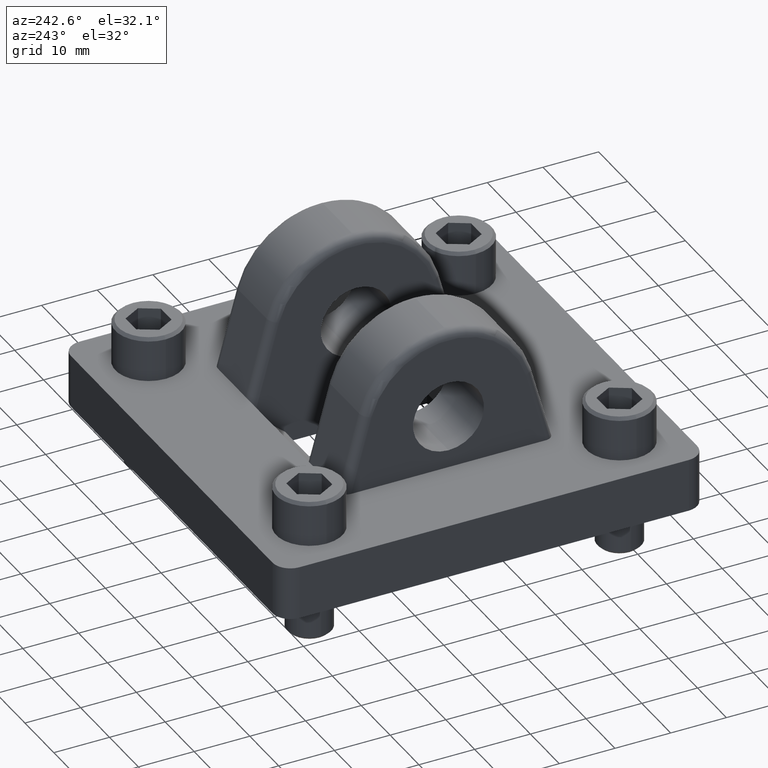
[diagram: clean part render]
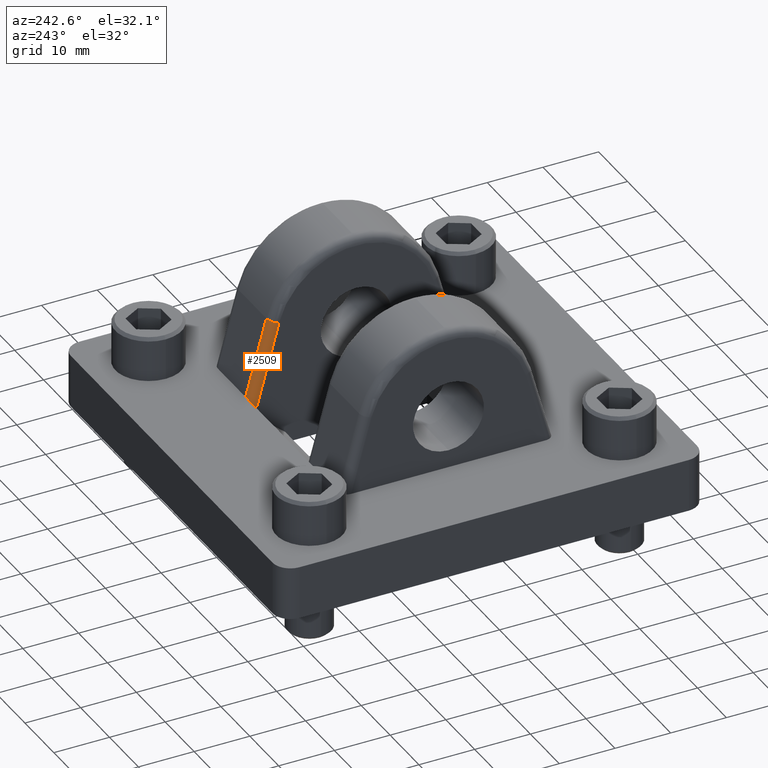
[diagram: same view with one face highlighted and labeled with its STEP entity id]
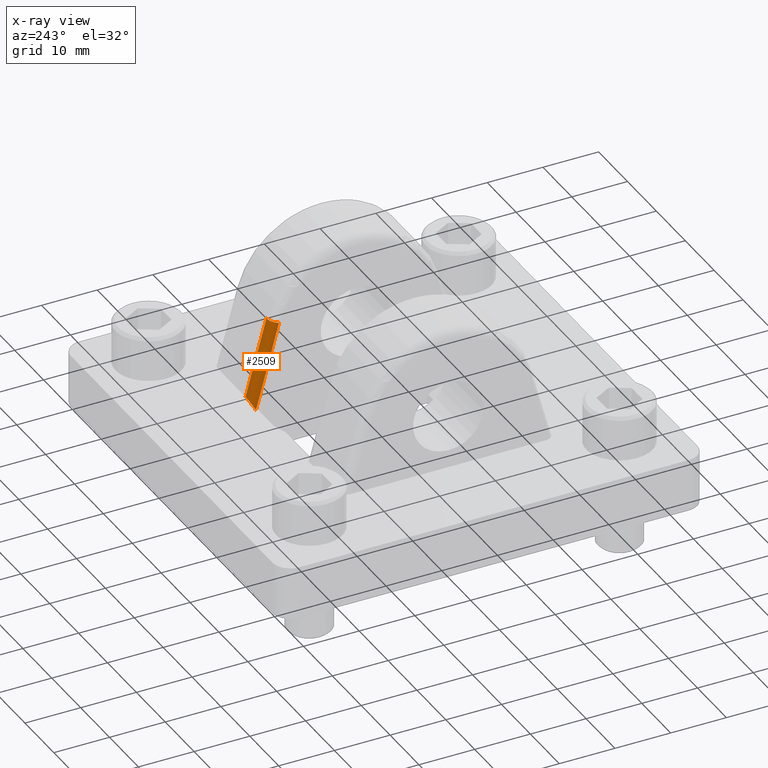
[diagram: x-ray of the same camera — body ghosted, the highlighted face saturated]
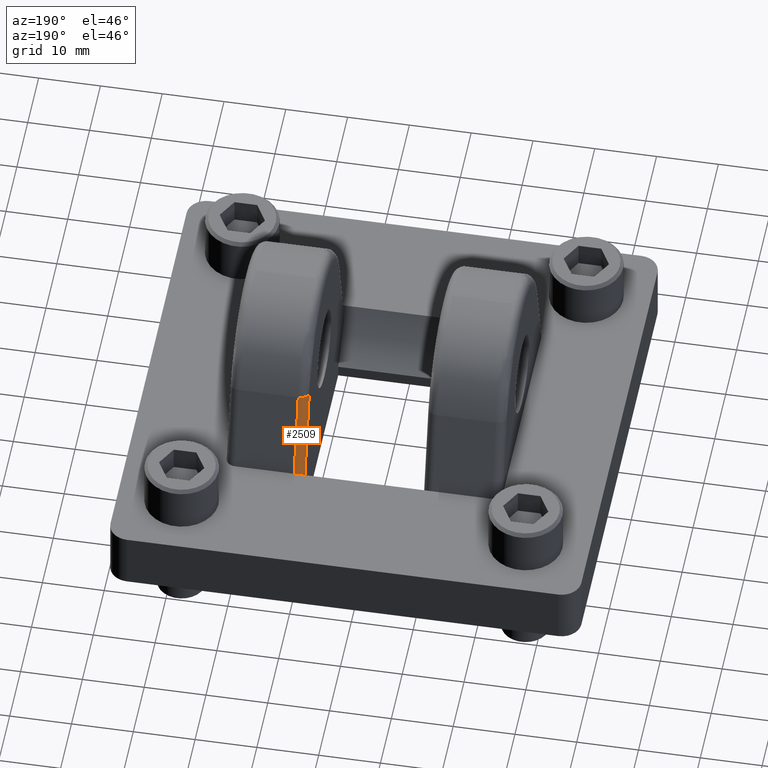
[diagram: same view with one face highlighted and labeled with its STEP entity id]
A machine part, auxiliary view. The second image highlights one B-rep face of the part: STEP entity #2509.
The next image is the same camera in x-ray: the body ghosted, the highlighted face saturated — about 0% of this face is hidden behind the body in this view.
A second angle (auxiliary view) of the same face is appended — the face is thin or edge-on in the first view.
In plain terms, the highlighted cylindrical surface (edge-blend (fillet) strip) has radius 1.524 mm, axis along (0, -0.263, 0.9648).
Its self-contained STEP definition (entity closure, byte-faithful):
#3 = CARTESIAN_POINT ( 'NONE',  ( 0.3993355934312640687, 0.7396625754544047249, 0.3549164697605183827 ) ) ;
#5 = CARTESIAN_POINT ( 'NONE',  ( 0.4399999999999999467, 0.7353905853882967136, 0.2004251782766634238 ) ) ;
#198 = DIRECTION ( 'NONE',  ( -0.0000000000000000000, 0.2629514606666110144, -0.9648090636666385445 ) ) ;
#271 = LINE ( 'NONE', #1386, #1498 ) ;
#280 = ORIENTED_EDGE ( 'NONE', *, *, #1168, .F. ) ;
#297 = CARTESIAN_POINT ( 'NONE',  ( 0.3812193750392662284, 0.7180784230457216699, 0.3169030707789862178 ) ) ;
#306 = CARTESIAN_POINT ( 'NONE',  ( 0.3799999999999999489, 0.5451171209716507704, 0.8985675752766348889 ) ) ;
#462 = DIRECTION ( 'NONE',  ( 0.0000000000000000000, 0.9648090636666383224, 0.2629514606666113474 ) ) ;
#680 = ORIENTED_EDGE ( 'NONE', *, *, #758, .F. ) ;
#758 = EDGE_CURVE ( 'NONE', #3470, #2035, #1230, .T. ) ;
#783 = CYLINDRICAL_SURFACE ( 'NONE', #2761, 0.05999999999999998390 ) ;
#964 = AXIS2_PLACEMENT_3D ( 'NONE', #2968, #3508, #462 ) ;
#1028 = EDGE_LOOP ( 'NONE', ( #280, #1209, #3544, #680 ) ) ;
#1087 = CARTESIAN_POINT ( 'NONE',  ( 0.4171550102905146051, 0.7470731951745195332, 0.3691919380612292967 ) ) ;
#1125 = CARTESIAN_POINT ( 'NONE',  ( 0.3799999999999999489, 0.7131854435313769169, 0.3088835355127597104 ) ) ;
#1130 = DIRECTION ( 'NONE',  ( 0.0000000000000000000, -0.9648090636666383224, -0.2629514606666113474 ) ) ;
#1168 = EDGE_CURVE ( 'NONE', #2536, #3470, #2375, .T. ) ;
#1209 = ORIENTED_EDGE ( 'NONE', *, *, #3117, .F. ) ;
#1230 = LINE ( 'NONE', #2953, #2692 ) ;
#1268 = DIRECTION ( 'NONE',  ( 0.0000000000000000000, -0.2629514606666110144, 0.9648090636666385445 ) ) ;
#1386 = CARTESIAN_POINT ( 'NONE',  ( 0.3799999999999999489, 0.5451171209716509924, 0.8985675752766353330 ) ) ;
#1488 = CARTESIAN_POINT ( 'NONE',  ( 0.4399999999999999467, 0.7500000000000002220, 0.3750000000000001110 ) ) ;
#1498 = VECTOR ( 'NONE', #198, 39.37007874015748854 ) ;
#1622 = CIRCLE ( 'NONE', #964, 0.05999999999999998390 ) ;
#1895 = CARTESIAN_POINT ( 'NONE',  ( 0.4213579420041239643, 0.7481309399625306611, 0.3712814155007703176 ) ) ;
#1919 = CARTESIAN_POINT ( 'NONE',  ( 0.4303768405631773764, 0.7496011345117876701, 0.3741997755283257288 ) ) ;
#1999 = CARTESIAN_POINT ( 'NONE',  ( 0.3799999999999999489, 0.7080409632690499722, 0.3007751183059469979 ) ) ;
#2035 = VERTEX_POINT ( 'NONE', #3088 ) ;
#2266 = CARTESIAN_POINT ( 'NONE',  ( 0.4399999999999999467, 0.7500000000000002220, 0.3750000000000001110 ) ) ;
#2375 = B_SPLINE_CURVE_WITH_KNOTS ( 'NONE', 3,
 ( #2781, #1125, #297, #3353, #2725, #3, #2802, #1087, #1895, #1919, #2523, #2266 ),
 .UNSPECIFIED., .F., .F.,
 ( 4, 2, 2, 2, 2, 4 ),
 ( 0.0000000000000000000, 0.0007213175691134730014, 0.001442635138226946003, 0.002163952707340419113, 0.002524611491897156210, 0.002885270276453893307 ),
 .UNSPECIFIED. ) ;
#2509 = ADVANCED_FACE ( 'NONE', ( #2788 ), #783, .T. ) ;
#2523 = CARTESIAN_POINT ( 'NONE',  ( 0.4351580754704352239, 0.7500000000000003331, 0.3750000000000005551 ) ) ;
#2536 = VERTEX_POINT ( 'NONE', #1999 ) ;
#2692 = VECTOR ( 'NONE', #1268, 39.37007874015748854 ) ;
#2725 = CARTESIAN_POINT ( 'NONE',  ( 0.3896097816467253283, 0.7318256988394382656, 0.3405822818776614302 ) ) ;
#2761 = AXIS2_PLACEMENT_3D ( 'NONE', #5, #3575, #1130 ) ;
#2781 = CARTESIAN_POINT ( 'NONE',  ( 0.3799999999999999489, 0.7080409632690499722, 0.3007751183059469979 ) ) ;
#2788 = FACE_OUTER_BOUND ( 'NONE', #1028, .T. ) ;
#2802 = CARTESIAN_POINT ( 'NONE',  ( 0.4055391878154785412, 0.7431604609150146423, 0.3615800143196937211 ) ) ;
#2953 = CARTESIAN_POINT ( 'NONE',  ( 0.4399999999999999467, 0.7932791292082950196, 0.2162022659166601135 ) ) ;
#2968 = CARTESIAN_POINT ( 'NONE',  ( 0.4399999999999999467, 0.5451171209716507704, 0.8985675752766348889 ) ) ;
#3088 = CARTESIAN_POINT ( 'NONE',  ( 0.4399999999999999467, 0.6030056647916491874, 0.9143446629166315232 ) ) ;
#3117 = EDGE_CURVE ( 'NONE', #3272, #2536, #271, .T. ) ;
#3126 = EDGE_CURVE ( 'NONE', #3272, #2035, #1622, .T. ) ;
#3272 = VERTEX_POINT ( 'NONE', #306 ) ;
#3353 = CARTESIAN_POINT ( 'NONE',  ( 0.3860080575861334906, 0.7274042953068577955, 0.3327559911590873276 ) ) ;
#3470 = VERTEX_POINT ( 'NONE', #1488 ) ;
#3508 = DIRECTION ( 'NONE',  ( 0.0000000000000000000, 0.2629514606666116250, -0.9648090636666384334 ) ) ;
#3544 = ORIENTED_EDGE ( 'NONE', *, *, #3126, .T. ) ;
#3575 = DIRECTION ( 'NONE',  ( 0.0000000000000000000, -0.2629514606666110699, 0.9648090636666386555 ) ) ;